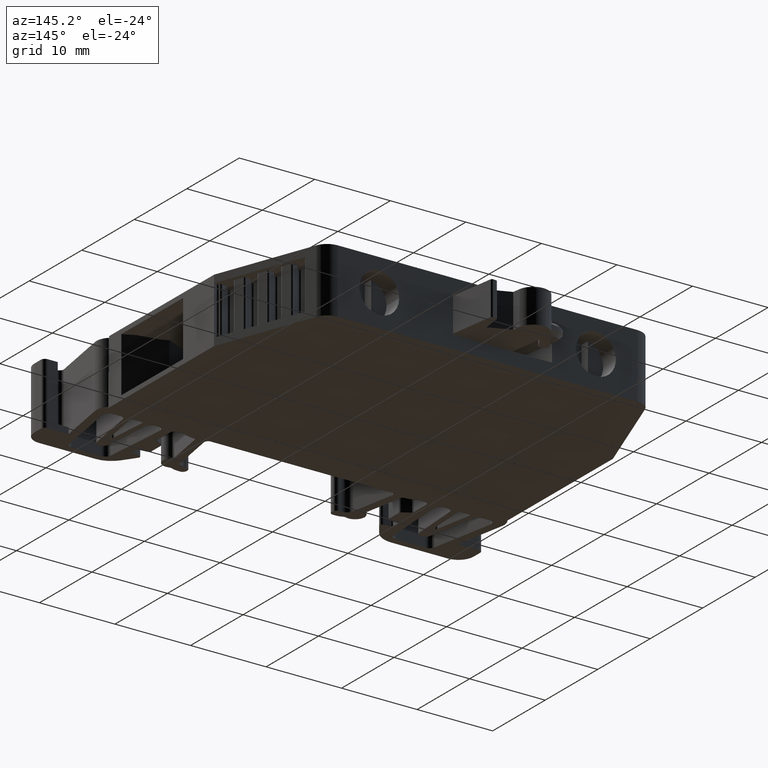
[diagram: clean part render]
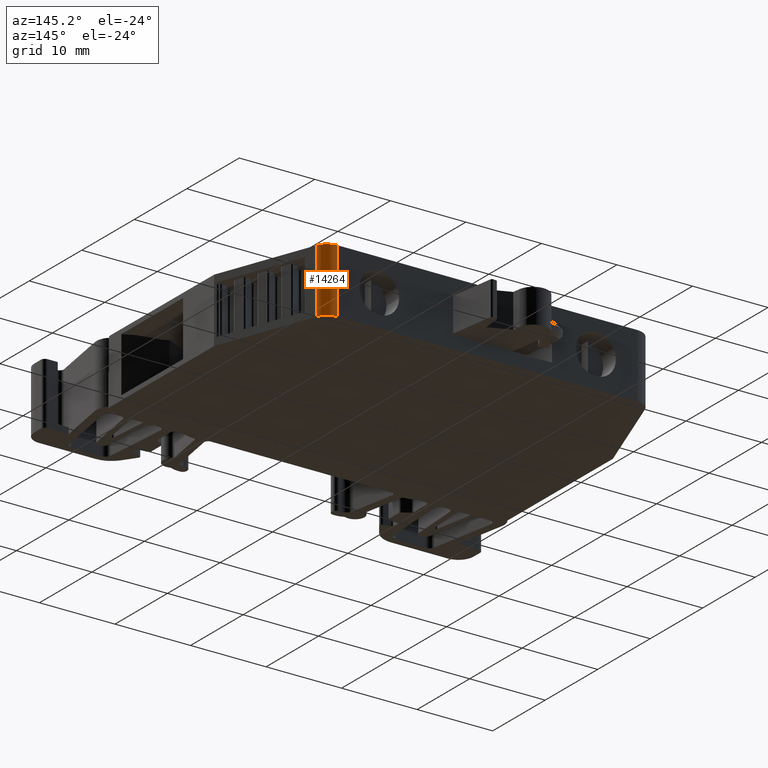
[diagram: same view with one face highlighted and labeled with its STEP entity id]
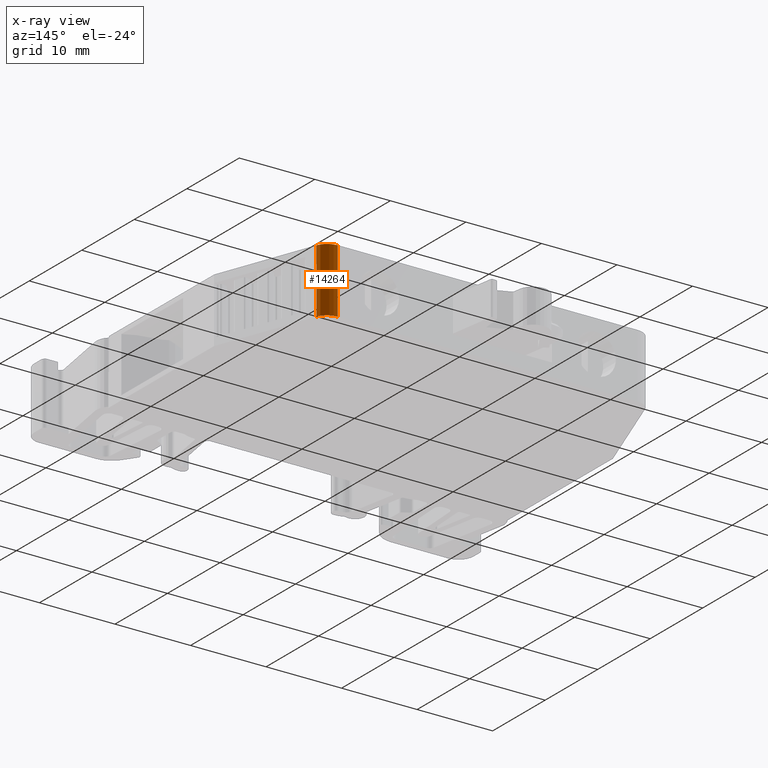
[diagram: x-ray of the same camera — body ghosted, the highlighted face saturated]
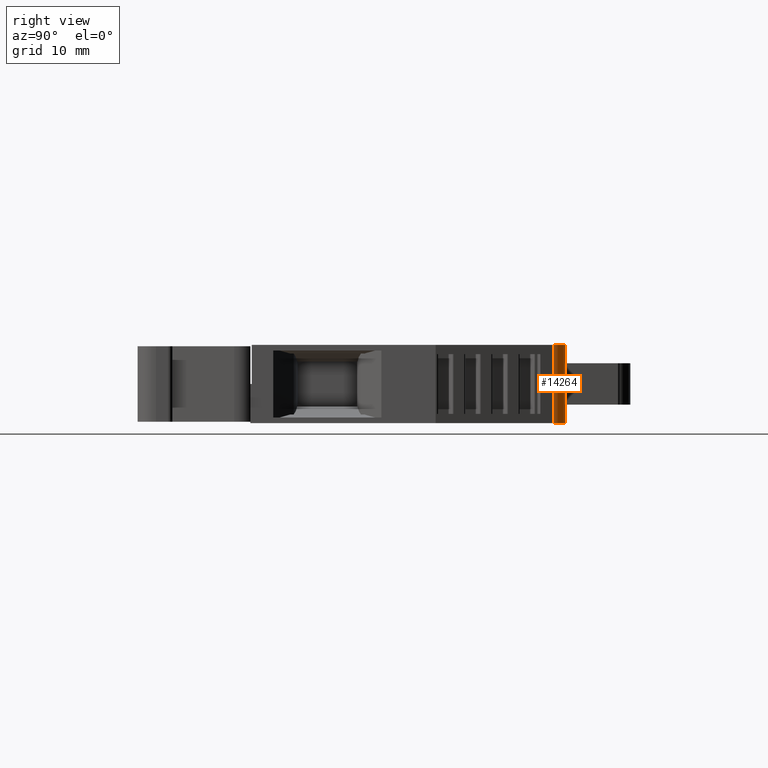
[diagram: same view with one face highlighted and labeled with its STEP entity id]
A machine part, auxiliary view. The second image highlights one B-rep face of the part: STEP entity #14264.
The next image is the same camera in x-ray: the body ghosted, the highlighted face saturated — about 0% of this face is hidden behind the body in this view.
A second angle (right view) of the same face is appended — the face is thin or edge-on in the first view.
In plain terms, the highlighted cylindrical surface (edge-blend (fillet) strip) has radius 2.0084 mm, axis along (0, 0, 1).
Its self-contained STEP definition (entity closure, byte-faithful):
#1948 = DIRECTION ( 'NONE',  ( 1.000000000000000000, 0.0000000000000000000, 0.0000000000000000000 ) ) ;
#1956 = CYLINDRICAL_SURFACE ( 'NONE', #11410, 2.008392452821250500 ) ;
#1979 = CARTESIAN_POINT ( 'NONE',  ( 575.4885157894668700, 287.0702665175990700, -62.91298641156375700 ) ) ;
#1992 = FACE_OUTER_BOUND ( 'NONE', #12142, .T. ) ;
#1997 = DIRECTION ( 'NONE',  ( 0.0000000000000000000, 0.0000000000000000000, 1.000000000000000000 ) ) ;
#4985 = LINE ( 'NONE', #5007, #12807 ) ;
#5001 = DIRECTION ( 'NONE',  ( 0.0000000000000000000, 0.0000000000000000000, 1.000000000000000000 ) ) ;
#5006 = CARTESIAN_POINT ( 'NONE',  ( 575.4885157894668700, 287.0702665175990700, -0.1554466076160027100 ) ) ;
#5007 = CARTESIAN_POINT ( 'NONE',  ( 577.3758297860100600, 287.7570606082853100, -62.91298641156375700 ) ) ;
#5010 = DIRECTION ( 'NONE',  ( 1.000000000000000000, 0.0000000000000000000, 0.0000000000000000000 ) ) ;
#5012 = DIRECTION ( 'NONE',  ( -0.0000000000000000000, -0.0000000000000000000, -1.000000000000000000 ) ) ;
#5038 = LINE ( 'NONE', #5054, #12795 ) ;
#5054 = CARTESIAN_POINT ( 'NONE',  ( 575.4885157894668700, 289.0786589704203500, -62.91298641156375700 ) ) ;
#5055 = DIRECTION ( 'NONE',  ( 0.0000000000000000000, 0.0000000000000000000, 1.000000000000000000 ) ) ;
#5060 = DIRECTION ( 'NONE',  ( -0.0000000000000000000, -0.0000000000000000000, -1.000000000000000000 ) ) ;
#5071 = DIRECTION ( 'NONE',  ( 1.000000000000000000, 0.0000000000000000000, 0.0000000000000000000 ) ) ;
#5072 = CARTESIAN_POINT ( 'NONE',  ( 575.4885157894668700, 287.0702665175990700, 8.342477920648988700 ) ) ;
#7687 = EDGE_CURVE ( 'NONE', #14787, #14760, #4985, .T. ) ;
#7691 = EDGE_CURVE ( 'NONE', #14755, #14787, #12808, .T. ) ;
#7705 = EDGE_CURVE ( 'NONE', #14755, #14802, #5038, .T. ) ;
#7706 = EDGE_CURVE ( 'NONE', #14802, #14760, #12822, .T. ) ;
#11410 = AXIS2_PLACEMENT_3D ( 'NONE', #1979, #1997, #1948 ) ;
#12142 = EDGE_LOOP ( 'NONE', ( #15106, #15174, #15069, #15075 ) ) ;
#12607 = CARTESIAN_POINT ( 'NONE',  ( 575.4885157894668700, 289.0786589704217100, -0.1554466076160027100 ) ) ;
#12616 = CARTESIAN_POINT ( 'NONE',  ( 577.3758297860100600, 287.7570606082853100, 8.342477920649022500 ) ) ;
#12629 = CARTESIAN_POINT ( 'NONE',  ( 577.3758297860100600, 287.7570606082852600, -0.1554466076160077000 ) ) ;
#12649 = CARTESIAN_POINT ( 'NONE',  ( 575.4885157894669900, 289.0786589704204100, 8.342477920648988700 ) ) ;
#12795 = VECTOR ( 'NONE', #5055, 1000.000000000000000 ) ;
#12807 = VECTOR ( 'NONE', #5001, 1000.000000000000000 ) ;
#12808 = CIRCLE ( 'NONE', #12844, 2.008392452821250500 ) ;
#12822 = CIRCLE ( 'NONE', #12825, 2.008392452821250500 ) ;
#12825 = AXIS2_PLACEMENT_3D ( 'NONE', #5072, #5060, #5071 ) ;
#12844 = AXIS2_PLACEMENT_3D ( 'NONE', #5006, #5012, #5010 ) ;
#14264 = ADVANCED_FACE ( 'NONE', ( #1992 ), #1956, .T. ) ;
#14755 = VERTEX_POINT ( 'NONE', #12607 ) ;
#14760 = VERTEX_POINT ( 'NONE', #12616 ) ;
#14787 = VERTEX_POINT ( 'NONE', #12629 ) ;
#14802 = VERTEX_POINT ( 'NONE', #12649 ) ;
#15069 = ORIENTED_EDGE ( 'NONE', *, *, #7687, .F. ) ;
#15075 = ORIENTED_EDGE ( 'NONE', *, *, #7691, .F. ) ;
#15106 = ORIENTED_EDGE ( 'NONE', *, *, #7705, .T. ) ;
#15174 = ORIENTED_EDGE ( 'NONE', *, *, #7706, .T. ) ;